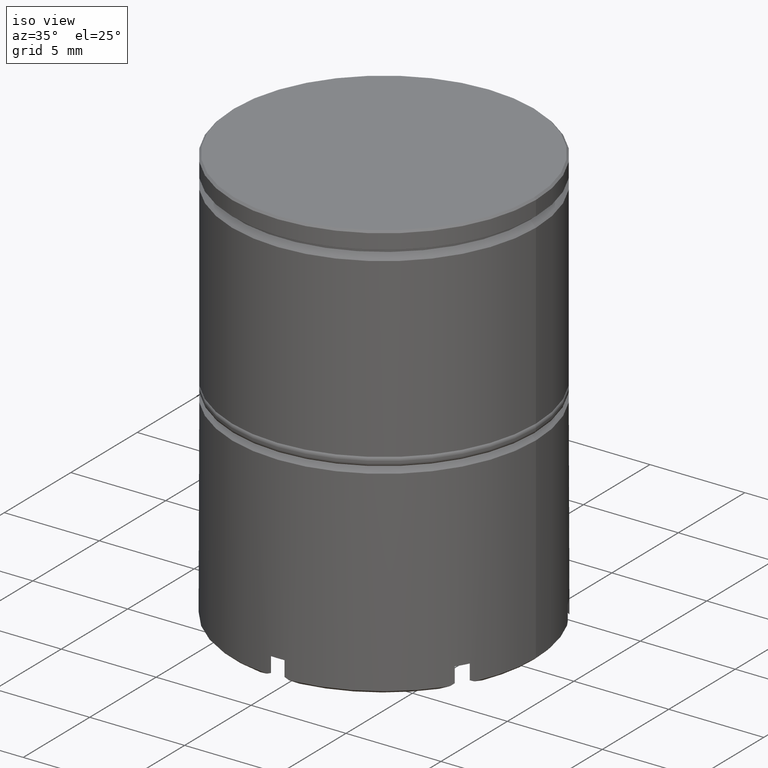
[diagram: clean part render]
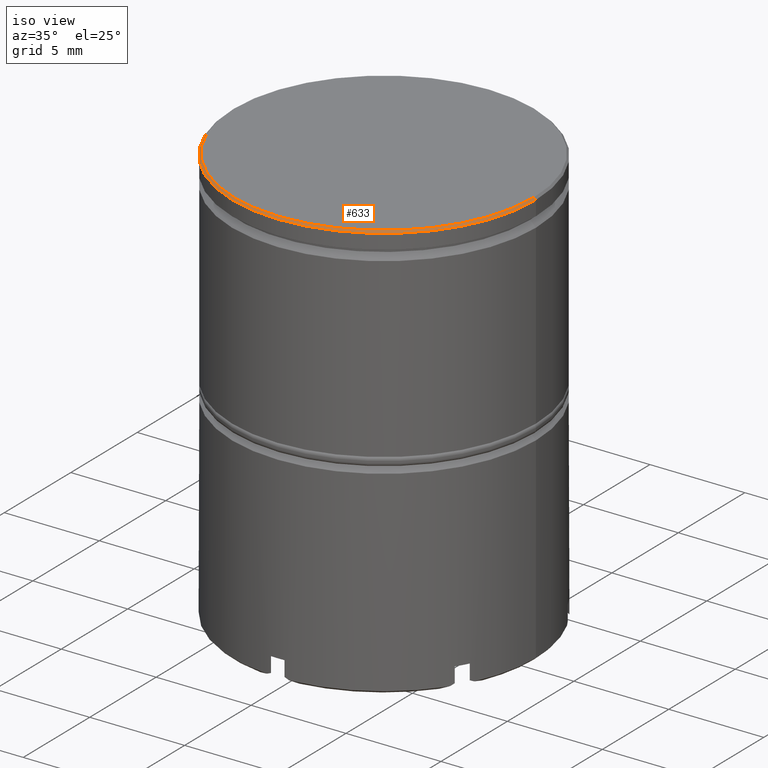
[diagram: same view with one face highlighted and labeled with its STEP entity id]
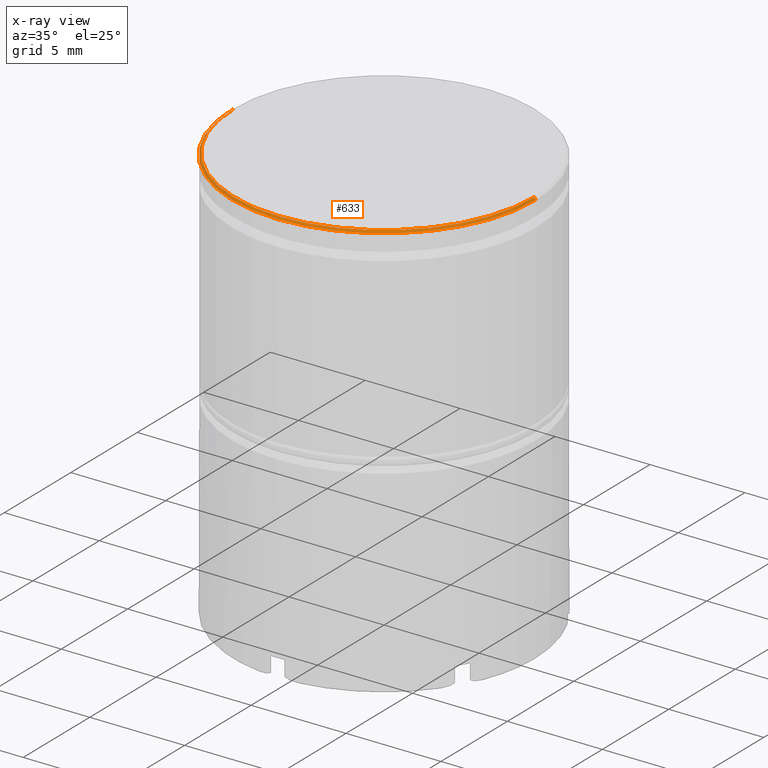
[diagram: x-ray of the same camera — body ghosted, the highlighted face saturated]
A machine part, iso view. The second image highlights one B-rep face of the part: STEP entity #633.
The next image is the same camera in x-ray: the body ghosted, the highlighted face saturated — about 0% of this face is hidden behind the body in this view.
In plain terms, the highlighted conical surface has half-angle 45 deg.
Its self-contained STEP definition (entity closure, byte-faithful):
#39 = EDGE_CURVE ( 'NONE', #700, #1623, #1620, .T. ) ;
#99 = ORIENTED_EDGE ( 'NONE', *, *, #731, .F. ) ;
#140 = VECTOR ( 'NONE', #845, 1000.000000000000114 ) ;
#158 = DIRECTION ( 'NONE',  ( 0.000000000000000000, 0.000000000000000000, -1.000000000000000000 ) ) ;
#221 = VERTEX_POINT ( 'NONE', #482 ) ;
#312 = VERTEX_POINT ( 'NONE', #807 ) ;
#328 = LINE ( 'NONE', #1102, #140 ) ;
#421 = ORIENTED_EDGE ( 'NONE', *, *, #39, .T. ) ;
#444 = DIRECTION ( 'NONE',  ( -0.000000000000000000, -0.000000000000000000, 1.000000000000000000 ) ) ;
#482 = CARTESIAN_POINT ( 'NONE',  ( 8.000000000000000000, 0.000000000000000000, -0.09999999999999592548 ) ) ;
#633 = ADVANCED_FACE ( 'NONE', ( #1047 ), #1384, .T. ) ;
#635 = DIRECTION ( 'NONE',  ( -0.7071067811865474617, 0.000000000000000000, -0.7071067811865474617 ) ) ;
#695 = ORIENTED_EDGE ( 'NONE', *, *, #851, .F. ) ;
#700 = VERTEX_POINT ( 'NONE', #1408 ) ;
#731 = EDGE_CURVE ( 'NONE', #221, #1623, #1486, .T. ) ;
#760 = CARTESIAN_POINT ( 'NONE',  ( -7.900000000000003908, 0.000000000000000000, 0.000000000000000000 ) ) ;
#807 = CARTESIAN_POINT ( 'NONE',  ( 7.900000000000003908, 9.735942053221460844E-16, 0.000000000000000000 ) ) ;
#825 = CARTESIAN_POINT ( 'NONE',  ( 0.000000000000000000, 0.000000000000000000, -0.09999999999999592548 ) ) ;
#845 = DIRECTION ( 'NONE',  ( 0.7071067811865474617, 8.659560562354932858E-17, -0.7071067811865474617 ) ) ;
#851 = EDGE_CURVE ( 'NONE', #312, #221, #328, .T. ) ;
#857 = CARTESIAN_POINT ( 'NONE',  ( 0.000000000000000000, 0.000000000000000000, 0.000000000000000000 ) ) ;
#867 = CIRCLE ( 'NONE', #1122, 7.900000000000003908 ) ;
#1047 = FACE_OUTER_BOUND ( 'NONE', #1430, .T. ) ;
#1102 = CARTESIAN_POINT ( 'NONE',  ( 7.900000000000003908, 9.674709713264096031E-16, 0.000000000000000000 ) ) ;
#1122 = AXIS2_PLACEMENT_3D ( 'NONE', #857, #444, #1349 ) ;
#1176 = CARTESIAN_POINT ( 'NONE',  ( 0.000000000000000000, 0.000000000000000000, 0.000000000000000000 ) ) ;
#1201 = AXIS2_PLACEMENT_3D ( 'NONE', #1176, #158, #1431 ) ;
#1316 = DIRECTION ( 'NONE',  ( 0.000000000000000000, 0.000000000000000000, -1.000000000000000000 ) ) ;
#1325 = VECTOR ( 'NONE', #635, 1000.000000000000114 ) ;
#1349 = DIRECTION ( 'NONE',  ( 1.000000000000000000, 0.000000000000000000, 0.000000000000000000 ) ) ;
#1373 = ORIENTED_EDGE ( 'NONE', *, *, #1425, .F. ) ;
#1380 = CARTESIAN_POINT ( 'NONE',  ( -8.000000000000000000, 9.797174393178825657E-16, -0.09999999999999592548 ) ) ;
#1384 = CONICAL_SURFACE ( 'NONE', #1201, 7.900000000000003908, 0.7853981633974482790 ) ;
#1408 = CARTESIAN_POINT ( 'NONE',  ( -7.900000000000003908, 0.000000000000000000, 0.000000000000000000 ) ) ;
#1409 = AXIS2_PLACEMENT_3D ( 'NONE', #825, #1316, #1565 ) ;
#1425 = EDGE_CURVE ( 'NONE', #700, #312, #867, .T. ) ;
#1430 = EDGE_LOOP ( 'NONE', ( #695, #1373, #421, #99 ) ) ;
#1431 = DIRECTION ( 'NONE',  ( -1.000000000000000000, 0.000000000000000000, 0.000000000000000000 ) ) ;
#1486 = CIRCLE ( 'NONE', #1409, 8.000000000000000000 ) ;
#1565 = DIRECTION ( 'NONE',  ( 1.000000000000000000, 0.000000000000000000, 0.000000000000000000 ) ) ;
#1620 = LINE ( 'NONE', #760, #1325 ) ;
#1623 = VERTEX_POINT ( 'NONE', #1380 ) ;